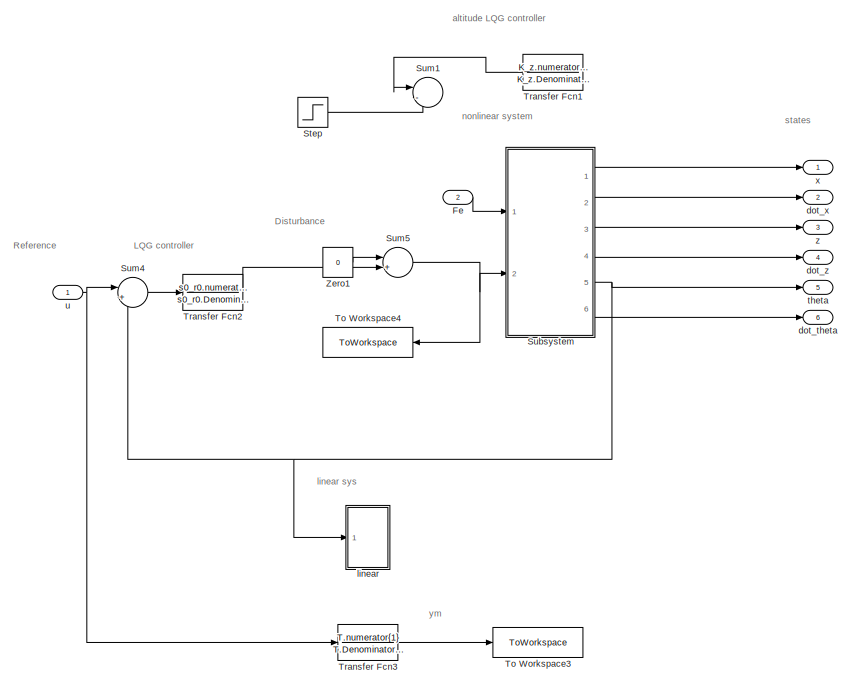
[diagram: root canvas - part 1/2, top left region]
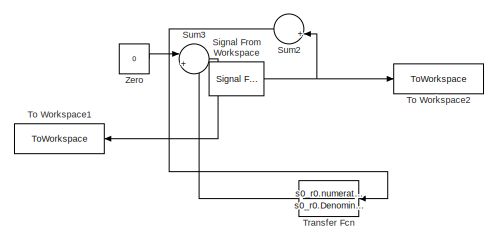
[diagram: root canvas - part 2/2, bottom right region]
MODEL slx_390bda8db879
KIND model
CONFIG AbsTol = auto
CONFIG EnableMultiTasking = off
CONFIG FixedStep = auto
CONFIG MaxStep = auto
CONFIG MinStep = auto
CONFIG RelTol = 1e-3
CONFIG SampleTimeConstraint = Unconstrained
CONFIG Solver = VariableStepAuto
CONFIG SolverName = VariableStepAuto
CONFIG StartTime = 0.0
CONFIG StopTime = 60
BLOCK [Inport] Fe
  IconDisplay = Port number
  Port = 2
BLOCK [Reference] Signal From Workspace  REF=dspsrcs4/Signal From
Workspace
  Commented = on
  Ports = [0, 1]
  SourceBlock = dspsrcs4/Signal From\nWorkspace
  SourceProductBaseCode = DS
  SourceProductName = DSP System Toolbox
  SourceType = Signal From Workspace
BLOCK [Step] Step
  After = 7e6
  Before = 0.05*7e6
  Commented = on
  SampleTime = 0
  Time = t_on
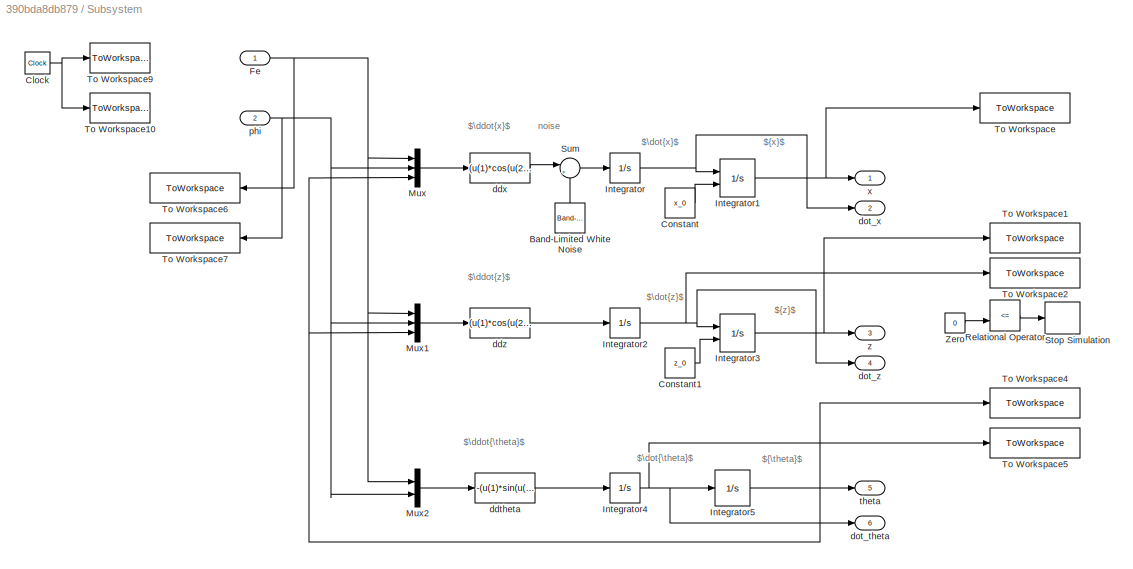
BLOCK [SubSystem] Subsystem
  Ports = [2, 6]
  RequestExecContextInheritance = off
BLOCK [Reference] Subsystem/Band-Limited White Noise  REF=simulink/Sources/Band-Limited
White Noise
  Ports = [0, 1]
  SourceBlock = simulink/Sources/Band-Limited\nWhite Noise
  SourceProductBaseCode = SL
  SourceProductName = Simulink
  SourceType = Band-Limited White Noise.
BLOCK [Clock] Subsystem/Clock
BLOCK [Constant] Subsystem/Constant
  SampleTime = Ts
  Value = x_0
BLOCK [Constant] Subsystem/Constant1
  SampleTime = Ts
  Value = z_0
BLOCK [Inport] Subsystem/Fe
  IconDisplay = Port number
BLOCK [Integrator] Subsystem/Integrator
  ContinuousStateAttributes = 'x_dot'
  Ports = [1, 1]
BLOCK [Integrator] Subsystem/Integrator1
  ContinuousStateAttributes = 'x'
  InitialConditionSource = external
  Ports = [2, 1]
BLOCK [Integrator] Subsystem/Integrator2
  ContinuousStateAttributes = 'z_dot'
  Ports = [1, 1]
BLOCK [Integrator] Subsystem/Integrator3
  ContinuousStateAttributes = 'z'
  InitialCondition = 50
  InitialConditionSource = external
  LimitOutput = on
  LowerSaturationLimit = 0
  Ports = [2, 1]
BLOCK [Integrator] Subsystem/Integrator4
  ContinuousStateAttributes = 'theta_dot'
  Ports = [1, 1]
BLOCK [Integrator] Subsystem/Integrator5
  Ports = [1, 1]
BLOCK [Mux] Subsystem/Mux
  DisplayOption = bar
  Inputs = 3
  Ports = [3, 1]
BLOCK [Mux] Subsystem/Mux1
  DisplayOption = bar
  Inputs = 3
  Ports = [3, 1]
BLOCK [Mux] Subsystem/Mux2
  DisplayOption = bar
  Inputs = 2
  Ports = [2, 1]
BLOCK [RelationalOperator] Subsystem/Relational Operator
  Commented = on
  InputSameDT = off
  Operator = <=
  OutDataTypeStr = boolean
  Ports = [2, 1]
BLOCK [Stop] Subsystem/Stop Simulation
  Commented = on
BLOCK [Sum] Subsystem/Sum
  IconShape = round
  InputSameDT = off
  Inputs = |++
  OutDataTypeStr = Inherit: Inherit via internal rule
  Ports = [2, 1]
  SaturateOnIntegerOverflow = off
BLOCK [ToWorkspace] Subsystem/To Workspace
  FixptAsFi = on
  MaxDataPoints = inf
  Ports = [1]
  SampleTime = Ts
  VariableName = x
BLOCK [ToWorkspace] Subsystem/To Workspace1
  FixptAsFi = on
  MaxDataPoints = inf
  Ports = [1]
  SampleTime = Ts
  VariableName = z
BLOCK [ToWorkspace] Subsystem/To Workspace10
  FixptAsFi = on
  MaxDataPoints = inf
  Ports = [1]
  SampleTime = Ts
  VariableName = ts
BLOCK [ToWorkspace] Subsystem/To Workspace2
  FixptAsFi = on
  MaxDataPoints = inf
  Ports = [1]
  SampleTime = Ts
  VariableName = dot_z
BLOCK [ToWorkspace] Subsystem/To Workspace4
  FixptAsFi = on
  MaxDataPoints = inf
  Ports = [1]
  SampleTime = Ts
  VariableName = theta
BLOCK [ToWorkspace] Subsystem/To Workspace5
  FixptAsFi = on
  MaxDataPoints = inf
  Ports = [1]
  SampleTime = Ts
  VariableName = dot_theta
BLOCK [ToWorkspace] Subsystem/To Workspace6
  FixptAsFi = on
  MaxDataPoints = inf
  Ports = [1]
  SampleTime = Ts
  VariableName = thrust
BLOCK [ToWorkspace] Subsystem/To Workspace7
  FixptAsFi = on
  MaxDataPoints = inf
  Ports = [1]
  SampleTime = Ts
  VariableName = gimbal
BLOCK [ToWorkspace] Subsystem/To Workspace9
  FixptAsFi = on
  MaxDataPoints = inf
  Ports = [1]
  SampleTime = -1
  VariableName = t
BLOCK [Constant] Subsystem/Zero
  Commented = on
  OutDataTypeStr = Inherit: Inherit via back propagation
  Value = 0
BLOCK [Fcn] Subsystem/ddtheta
  Expr = -(u(1)*sin(u(2))*(60+1*cos(u(2))))/J_T
BLOCK [Fcn] Subsystem/ddx
  Expr = (u(1)*cos(u(2))*sin(u(3))+u(1)*cos(u(3))*sin(u(2)))/m
BLOCK [Fcn] Subsystem/ddz
  Expr = (u(1)*cos(u(2))*cos(u(3))-u(1)*sin(u(2))*sin(u(3))-m*g)/m
BLOCK [Outport] Subsystem/dot_theta 
  IconDisplay = Port number
  Port = 6
BLOCK [Outport] Subsystem/dot_x
  IconDisplay = Port number
  Port = 2
BLOCK [Outport] Subsystem/dot_z 
  IconDisplay = Port number
  Port = 4
BLOCK [Inport] Subsystem/phi
  IconDisplay = Port number
  Port = 2
BLOCK [Outport] Subsystem/theta
  IconDisplay = Port number
  Port = 5
BLOCK [Outport] Subsystem/x
  IconDisplay = Port number
BLOCK [Outport] Subsystem/z
  IconDisplay = Port number
  Port = 3
BLOCK [Sum] Sum1
  Commented = on
  IconShape = round
  InputSameDT = off
  Inputs = |-+
  OutDataTypeStr = Inherit: Inherit via internal rule
  Ports = [2, 1]
  SaturateOnIntegerOverflow = off
BLOCK [Sum] Sum2
  Commented = on
  IconShape = round
  InputSameDT = off
  Inputs = |+-
  OutDataTypeStr = Inherit: Inherit via internal rule
  Ports = [2, 1]
  SaturateOnIntegerOverflow = off
BLOCK [Sum] Sum3
  Commented = on
  IconShape = round
  InputSameDT = off
  Inputs = |+-
  OutDataTypeStr = Inherit: Inherit via internal rule
  Ports = [2, 1]
  SaturateOnIntegerOverflow = off
BLOCK [Sum] Sum4
  IconShape = round
  InputSameDT = off
  Inputs = |+-
  OutDataTypeStr = Inherit: Inherit via internal rule
  Ports = [2, 1]
  SaturateOnIntegerOverflow = off
BLOCK [Sum] Sum5
  IconShape = round
  InputSameDT = off
  Inputs = |++
  OutDataTypeStr = Inherit: Inherit via internal rule
  Ports = [2, 1]
  SaturateOnIntegerOverflow = off
BLOCK [ToWorkspace] To Workspace1
  Commented = on
  FixptAsFi = on
  MaxDataPoints = inf
  Ports = [1]
  SampleTime = Ts
  VariableName = Phi_control
BLOCK [ToWorkspace] To Workspace2
  Commented = on
  FixptAsFi = on
  MaxDataPoints = inf
  Ports = [1]
  SampleTime = Ts
  VariableName = Phi_ref
BLOCK [ToWorkspace] To Workspace3
  FixptAsFi = on
  MaxDataPoints = inf
  Ports = [1]
  SampleTime = Ts
  VariableName = y_ref
BLOCK [ToWorkspace] To Workspace4
  FixptAsFi = on
  MaxDataPoints = inf
  Ports = [1]
  SampleTime = Ts
  VariableName = Phi_control
BLOCK [TransferFcn] Transfer Fcn
  Commented = on
  Denominator = s0_r0.Denominator{1}
  Numerator = s0_r0.numerator{1}
BLOCK [TransferFcn] Transfer Fcn1
  Commented = on
  Denominator = K_z.Denominator{1}
  Numerator = K_z.numerator{1}
BLOCK [TransferFcn] Transfer Fcn2
  Denominator = s0_r0.Denominator{1}
  Numerator = s0_r0.numerator{1}
BLOCK [TransferFcn] Transfer Fcn3
  Denominator = T.Denominator{1}
  Numerator = T.numerator{1}
BLOCK [Constant] Zero
  Commented = on
  OutDataTypeStr = Inherit: Inherit via back propagation
  SampleTime = Ts
  Value = 0
BLOCK [Constant] Zero1
  OutDataTypeStr = Inherit: Inherit via back propagation
  SampleTime = Ts
  Value = 0
BLOCK [Outport] dot_theta 
  IconDisplay = Port number
  Port = 6
BLOCK [Outport] dot_x 
  IconDisplay = Port number
  Port = 2
BLOCK [Outport] dot_z
  IconDisplay = Port number
  Port = 4
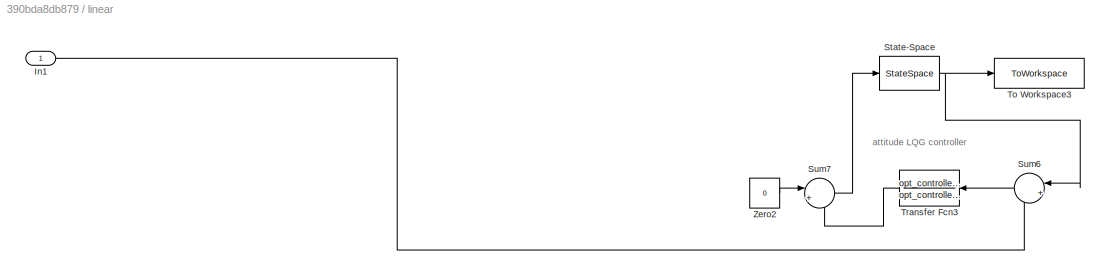
BLOCK [SubSystem] linear
  Ports = [1]
  RequestExecContextInheritance = off
BLOCK [Inport] linear/In1
  IconDisplay = Port number
BLOCK [StateSpace] linear/State-Space
  A = sys.A
  B = sys.B
  C = sys.C
  D = D
  InitialCondition = 0
  Ports = [1, 1]
BLOCK [Sum] linear/Sum6
  IconShape = round
  InputSameDT = off
  Inputs = |+-
  OutDataTypeStr = Inherit: Inherit via internal rule
  Ports = [2, 1]
  SaturateOnIntegerOverflow = off
BLOCK [Sum] linear/Sum7
  IconShape = round
  InputSameDT = off
  Inputs = |+-
  OutDataTypeStr = Inherit: Inherit via internal rule
  Ports = [2, 1]
  SaturateOnIntegerOverflow = off
BLOCK [ToWorkspace] linear/To Workspace3
  FixptAsFi = on
  MaxDataPoints = inf
  Ports = [1]
  SampleTime = Ts
  VariableName = theta_linear
BLOCK [TransferFcn] linear/Transfer Fcn3
  Denominator = opt_controller.Denominator{1}
  Numerator = opt_controller.numerator{1}
BLOCK [Constant] linear/Zero2
  OutDataTypeStr = Inherit: Inherit via back propagation
  SampleTime = Ts
  Value = 0
BLOCK [Outport] theta
  IconDisplay = Port number
  Port = 5
BLOCK [Inport] u
  IconDisplay = Port number
BLOCK [Outport] x
  IconDisplay = Port number
BLOCK [Outport] z
  IconDisplay = Port number
  Port = 3
ANNOTATION (root): LQG controller
ANNOTATION (root): Disturbance
ANNOTATION (root): Reference
ANNOTATION (root): altitude LQG controller
ANNOTATION (root): linear sys
ANNOTATION (root): nonlinear system
ANNOTATION (root): states
ANNOTATION (root): ym
ANNOTATION Subsystem: noise
ANNOTATION Subsystem: $\ddot{\theta}$
ANNOTATION Subsystem: $\ddot{x}$
ANNOTATION Subsystem: $\ddot{z}$
ANNOTATION Subsystem: $\dot{\theta}$
ANNOTATION Subsystem: $\dot{x}$
ANNOTATION Subsystem: $\dot{z}$
ANNOTATION Subsystem: ${\theta}$
ANNOTATION Subsystem: ${x}$
ANNOTATION Subsystem: ${z}$
ANNOTATION linear: attitude LQG controller
LINE Fe:1 -> Subsystem:1
NET Signal From Workspace:1 -> Sum2:2, To Workspace2:1
LINE Step:1 -> Sum1:2
LINE Subsystem/Band-Limited White Noise:1 -> Subsystem/Sum:2
NET Subsystem/Clock:1 -> Subsystem/To Workspace10:1, Subsystem/To Workspace9:1
LINE Subsystem/Constant1:1 -> Subsystem/Integrator3:2
LINE Subsystem/Constant:1 -> Subsystem/Integrator1:2
NET Subsystem/Fe:1 -> Subsystem/Mux1:1, Subsystem/Mux2:1, Subsystem/Mux:1, Subsystem/To Workspace6:1
NET Subsystem/Integrator1:1 -> Subsystem/To Workspace:1, Subsystem/x:1
NET Subsystem/Integrator2:1 -> Subsystem/Integrator3:1, Subsystem/To Workspace2:1, Subsystem/dot_z :1
NET Subsystem/Integrator3:1 -> Subsystem/To Workspace1:1, Subsystem/z:1
NET Subsystem/Integrator4:1 -> Subsystem/Integrator5:1, Subsystem/To Workspace5:1, Subsystem/dot_theta :1
NET Subsystem/Integrator5:1 -> Subsystem/Mux1:3, Subsystem/Mux:3, Subsystem/To Workspace4:1, Subsystem/theta:1
NET Subsystem/Integrator:1 -> Subsystem/Integrator1:1, Subsystem/dot_x:1
LINE Subsystem/Mux1:1 -> Subsystem/ddz:1
LINE Subsystem/Mux2:1 -> Subsystem/ddtheta:1
LINE Subsystem/Mux:1 -> Subsystem/ddx:1
LINE Subsystem/Relational Operator:1 -> Subsystem/Stop Simulation:1
LINE Subsystem/Sum:1 -> Subsystem/Integrator:1
LINE Subsystem/Zero:1 -> Subsystem/Relational Operator:2
LINE Subsystem/ddtheta:1 -> Subsystem/Integrator4:1
LINE Subsystem/ddx:1 -> Subsystem/Sum:1
LINE Subsystem/ddz:1 -> Subsystem/Integrator2:1
NET Subsystem/phi:1 -> Subsystem/Mux1:2, Subsystem/Mux2:2, Subsystem/Mux:2, Subsystem/To Workspace7:1
LINE Subsystem:1 -> x:1
LINE Subsystem:2 -> dot_x :1
LINE Subsystem:3 -> z:1
LINE Subsystem:4 -> dot_z:1
NET Subsystem:5 -> Sum4:2, linear:1, theta:1
LINE Subsystem:6 -> dot_theta :1
LINE Sum2:1 -> Transfer Fcn:1
LINE Sum3:1 -> To Workspace1:1
LINE Sum4:1 -> Transfer Fcn2:1
NET Sum5:1 -> Subsystem:2, To Workspace4:1
LINE Transfer Fcn1:1 -> Sum1:1
LINE Transfer Fcn2:1 -> Sum5:2
LINE Transfer Fcn3:1 -> To Workspace3:1
LINE Transfer Fcn:1 -> Sum3:2
LINE Zero1:1 -> Sum5:1
LINE Zero:1 -> Sum3:1
LINE linear/In1:1 -> linear/Sum6:2
NET linear/State-Space:1 -> linear/Sum6:1, linear/To Workspace3:1
LINE linear/Sum6:1 -> linear/Transfer Fcn3:1
LINE linear/Sum7:1 -> linear/State-Space:1
LINE linear/Transfer Fcn3:1 -> linear/Sum7:2
LINE linear/Zero2:1 -> linear/Sum7:1
NET u:1 -> Sum4:1, Transfer Fcn3:1
note: NET lines group one-source signal fan-out (src -> all destinations, sorted); 1:1 wires keep LINE
